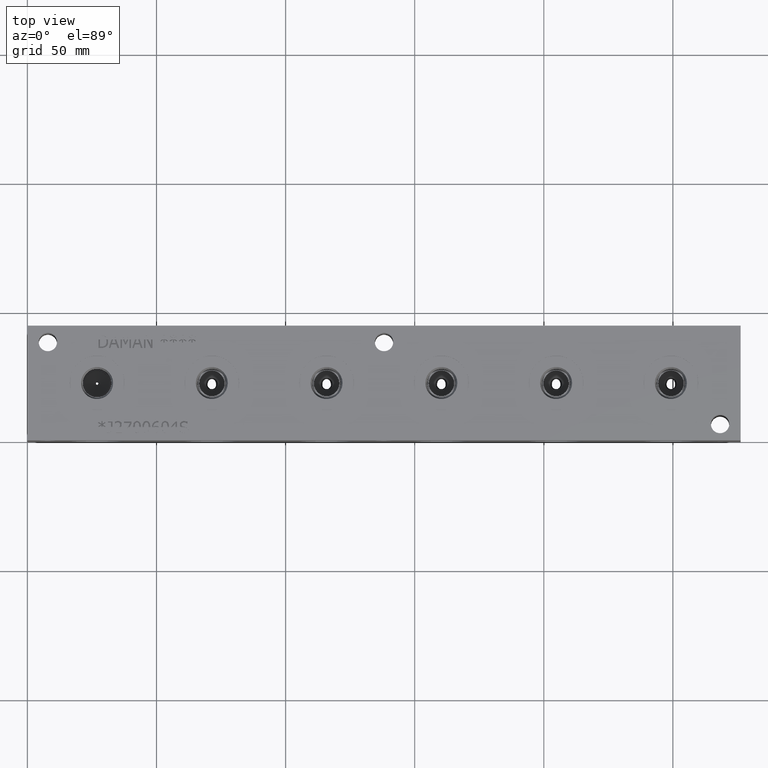
[diagram: clean part render]
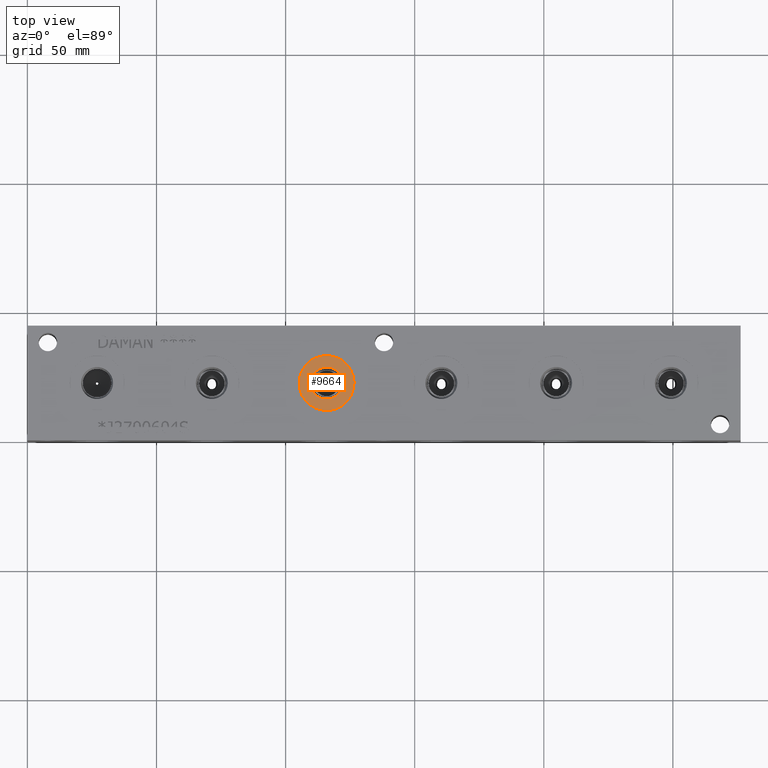
[diagram: same view with one face highlighted and labeled with its STEP entity id]
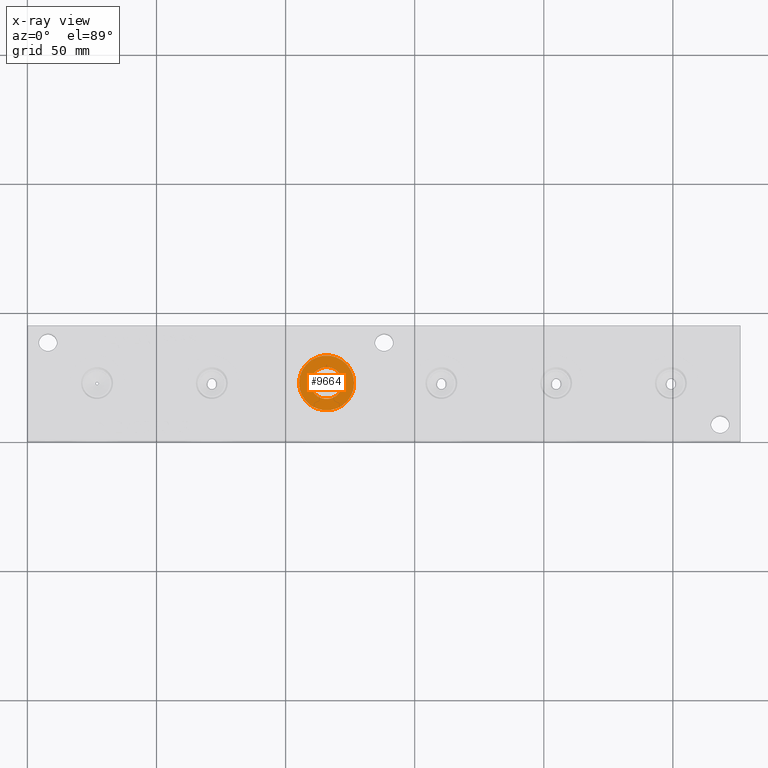
[diagram: x-ray of the same camera — body ghosted, the highlighted face saturated]
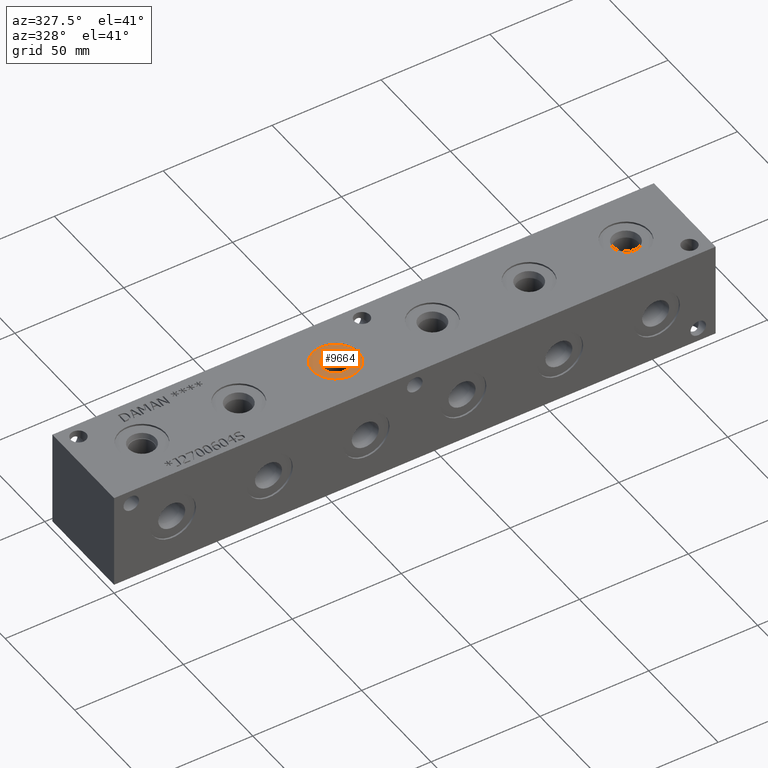
[diagram: same view with one face highlighted and labeled with its STEP entity id]
A machine part, top view. The second image highlights one B-rep face of the part: STEP entity #9664.
The next image is the same camera in x-ray: the body ghosted, the highlighted face saturated — about 0% of this face is hidden behind the body in this view.
A second angle (auxiliary view) of the same face is appended — the face is thin or edge-on in the first view.
In plain terms, the highlighted planar face has unit normal (0, 0, 1).
Its self-contained STEP definition (entity closure, byte-faithful):
#509=CIRCLE('',#10424,10.6426);
#510=CIRCLE('',#10425,10.6426);
#511=CIRCLE('',#10426,6.1976);
#599=FACE_BOUND('',#1971,.T.);
#1393=FACE_OUTER_BOUND('',#1970,.T.);
#1970=EDGE_LOOP('',(#8461,#8462));
#1971=EDGE_LOOP('',(#8463));
#4531=VERTEX_POINT('',#16734);
#4532=VERTEX_POINT('',#16735);
#4533=VERTEX_POINT('',#16738);
#5869=EDGE_CURVE('',#4531,#4532,#509,.T.);
#5870=EDGE_CURVE('',#4532,#4531,#510,.T.);
#5871=EDGE_CURVE('',#4533,#4533,#511,.T.);
#8461=ORIENTED_EDGE('',*,*,#5869,.T.);
#8462=ORIENTED_EDGE('',*,*,#5870,.T.);
#8463=ORIENTED_EDGE('',*,*,#5871,.F.);
#8874=PLANE('',#10423);
#9664=ADVANCED_FACE('',(#1393,#599),#8874,.T.);
#10423=AXIS2_PLACEMENT_3D('',#16733,#12701,#12702);
#10424=AXIS2_PLACEMENT_3D('',#16736,#12703,#12704);
#10425=AXIS2_PLACEMENT_3D('',#16737,#12705,#12706);
#10426=AXIS2_PLACEMENT_3D('',#16739,#12707,#12708);
#12701=DIRECTION('center_axis',(0.,0.,1.));
#12702=DIRECTION('ref_axis',(1.,0.,0.));
#12703=DIRECTION('center_axis',(0.,0.,1.));
#12704=DIRECTION('ref_axis',(1.,0.,0.));
#12705=DIRECTION('center_axis',(0.,0.,1.));
#12706=DIRECTION('ref_axis',(1.,0.,0.));
#12707=DIRECTION('center_axis',(0.,0.,1.));
#12708=DIRECTION('ref_axis',(1.,0.,0.));
#16733=CARTESIAN_POINT('Origin',(115.8748,22.225,43.6626));
#16734=CARTESIAN_POINT('',(126.5174,22.225,43.6626));
#16735=CARTESIAN_POINT('',(105.2322,22.225,43.6626));
#16736=CARTESIAN_POINT('Origin',(115.8748,22.225,43.6626));
#16737=CARTESIAN_POINT('Origin',(115.8748,22.225,43.6626));
#16738=CARTESIAN_POINT('',(109.6772,22.225,43.6626));
#16739=CARTESIAN_POINT('Origin',(115.8748,22.225,43.6626));